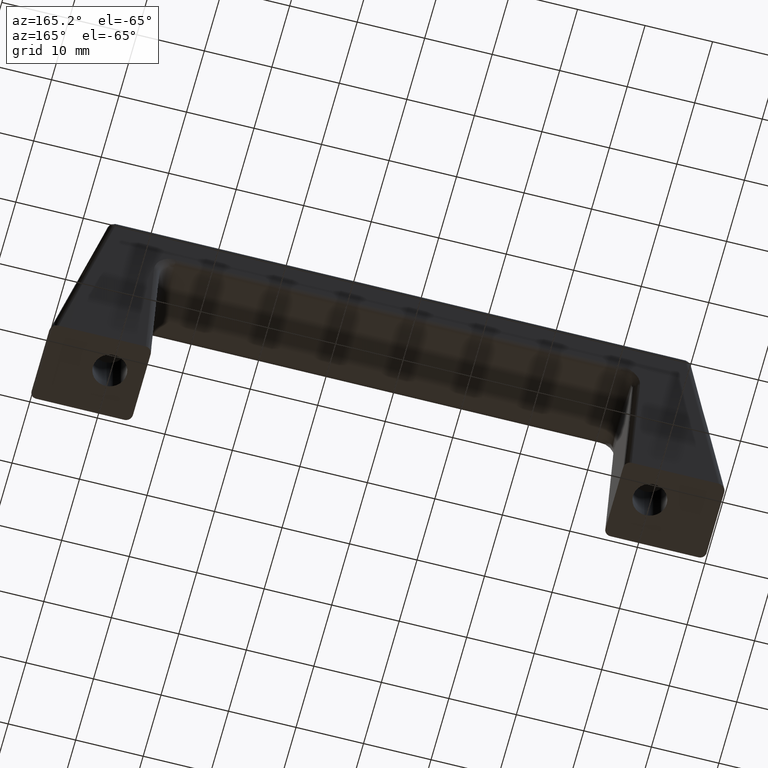
[diagram: clean part render]
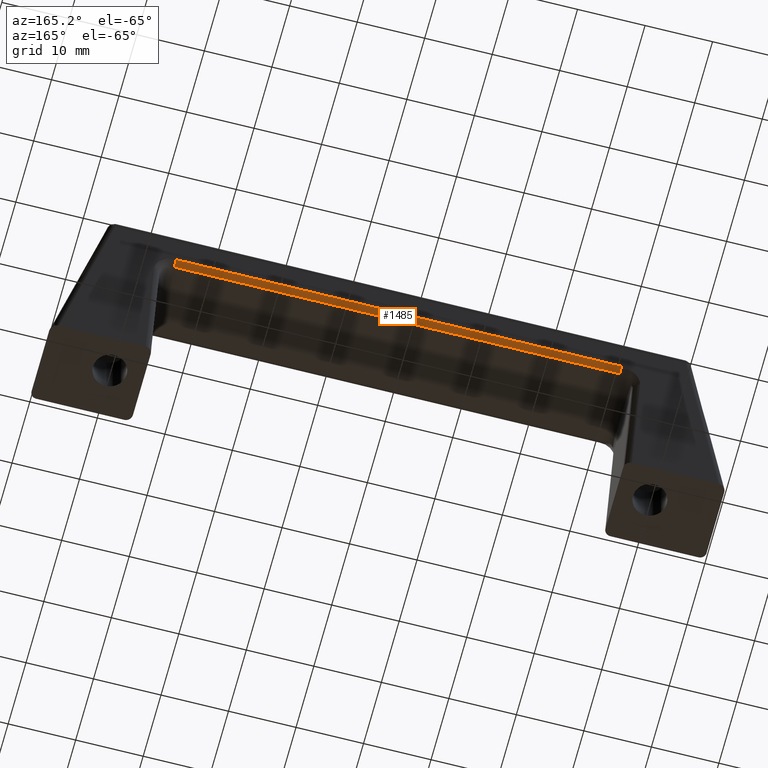
[diagram: same view with one face highlighted and labeled with its STEP entity id]
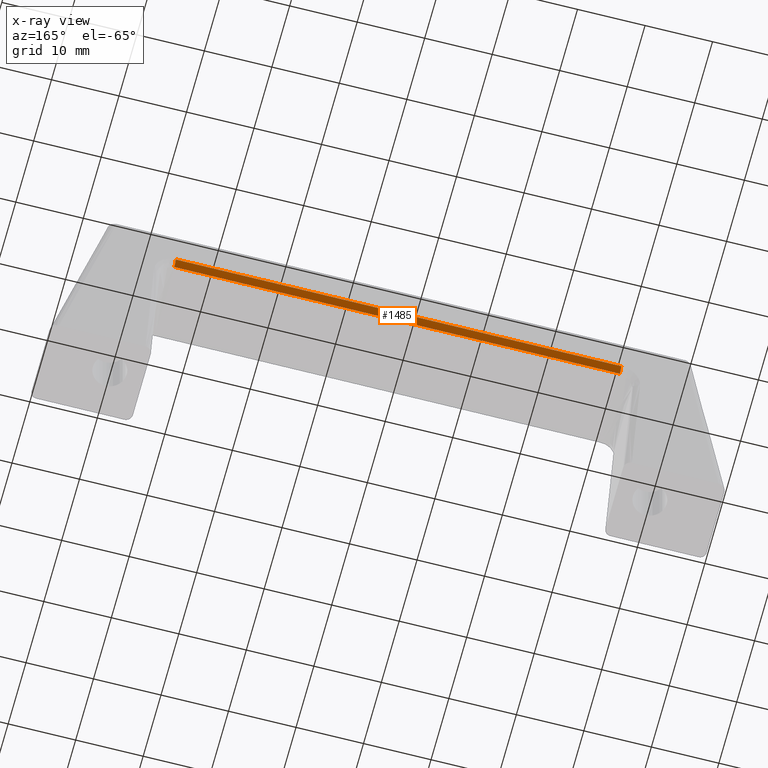
[diagram: x-ray of the same camera — body ghosted, the highlighted face saturated]
A machine part, auxiliary view. The second image highlights one B-rep face of the part: STEP entity #1485.
The next image is the same camera in x-ray: the body ghosted, the highlighted face saturated — about 0% of this face is hidden behind the body in this view.
In plain terms, the highlighted face is a freeform B-spline surface patch.
Its self-contained STEP definition (entity closure, byte-faithful):
#1394=CARTESIAN_POINT('',(-33.0,17.507427238327200,19.670567183247901));
#1395=VERTEX_POINT('',#1394);
#1396=CARTESIAN_POINT('',(-33.0,16.625622738584099,18.943481275043400));
#1397=VERTEX_POINT('',#1396);
#1398=CARTESIAN_POINT('',(-33.0,17.507427238327210,19.670567183247901));
#1399=CARTESIAN_POINT('',(-33.000000000000007,17.319679730299423,19.000000000000014));
#1400=CARTESIAN_POINT('',(-33.0,16.625622738584099,18.943481275043400));
#1408=(BOUNDED_CURVE()B_SPLINE_CURVE(2,(#1398,#1399,#1400),.UNSPECIFIED.,.F.,.U.)CURVE()GEOMETRIC_REPRESENTATION_ITEM()QUASI_UNIFORM_CURVE()RATIONAL_B_SPLINE_CURVE((1.0,0.820634953301901,1.0))REPRESENTATION_ITEM(''));
#1409=EDGE_CURVE('',#1395,#1397,#1408,.T.);
#1441=CARTESIAN_POINT('',(34.650000000000013,16.594331146518819,18.941426446274530));
#1442=CARTESIAN_POINT('',(-34.691249999999997,16.594331146518819,18.941426446274530));
#1443=CARTESIAN_POINT('',(34.650000000000006,17.357468386627332,18.979533154935130));
#1444=CARTESIAN_POINT('',(-34.691249999999997,17.357468386627332,18.979533154935130));
#1445=CARTESIAN_POINT('',(34.650000000000006,17.521223673401970,19.725867379353868));
#1446=CARTESIAN_POINT('',(-34.691249999999997,17.521223673401970,19.725867379353868));
#1454=(BOUNDED_SURFACE()B_SPLINE_SURFACE(1,2,((#1441,#1443,#1445),(#1442,#1444,#1446)),.UNSPECIFIED.,.F.,.F.,.U.)B_SPLINE_SURFACE_WITH_KNOTS((2,2),(3,3),(0.0,69.341250000000002),(0.0,0.982573085241672),.UNSPECIFIED.)GEOMETRIC_REPRESENTATION_ITEM()RATIONAL_B_SPLINE_SURFACE(((1.0,0.791705072133300,0.992740124094950),(1.0,0.791705072133300,0.992740124094950)))REPRESENTATION_ITEM('')SURFACE());
#1455=CARTESIAN_POINT('',(33.0,17.507427238327200,19.670567183247901));
#1456=VERTEX_POINT('',#1455);
#1457=CARTESIAN_POINT('',(33.0,16.625622738584099,18.943481275043400));
#1458=VERTEX_POINT('',#1457);
#1459=CARTESIAN_POINT('',(33.0,17.507427238327210,19.670567183247901));
#1460=CARTESIAN_POINT('',(33.000000000000007,17.319679730299423,19.000000000000014));
#1461=CARTESIAN_POINT('',(33.0,16.625622738584099,18.943481275043400));
#1469=(BOUNDED_CURVE()B_SPLINE_CURVE(2,(#1459,#1460,#1461),.UNSPECIFIED.,.F.,.U.)CURVE()GEOMETRIC_REPRESENTATION_ITEM()QUASI_UNIFORM_CURVE()RATIONAL_B_SPLINE_CURVE((1.0,0.820634953301901,1.0))REPRESENTATION_ITEM(''));
#1470=EDGE_CURVE('',#1456,#1458,#1469,.T.);
#1471=ORIENTED_EDGE('',*,*,#1470,.T.);
#1472=CARTESIAN_POINT('',(-33.0,16.625622738584099,18.943481275043400));
#1473=CARTESIAN_POINT('',(33.0,16.625622738584099,18.943481275043400));
#1474=QUASI_UNIFORM_CURVE('',1,(#1472,#1473),.UNSPECIFIED.,.F.,.U.);
#1475=EDGE_CURVE('',#1397,#1458,#1474,.T.);
#1476=ORIENTED_EDGE('',*,*,#1475,.F.);
#1477=ORIENTED_EDGE('',*,*,#1409,.F.);
#1478=CARTESIAN_POINT('',(33.0,17.507427238327200,19.670567183247901));
#1479=CARTESIAN_POINT('',(-33.0,17.507427238327200,19.670567183247901));
#1480=QUASI_UNIFORM_CURVE('',1,(#1478,#1479),.UNSPECIFIED.,.F.,.U.);
#1481=EDGE_CURVE('',#1456,#1395,#1480,.T.);
#1482=ORIENTED_EDGE('',*,*,#1481,.F.);
#1483=EDGE_LOOP('',(#1471,#1476,#1477,#1482));
#1484=FACE_OUTER_BOUND('',#1483,.T.);
#1485=ADVANCED_FACE('',(#1484),#1454,.T.);